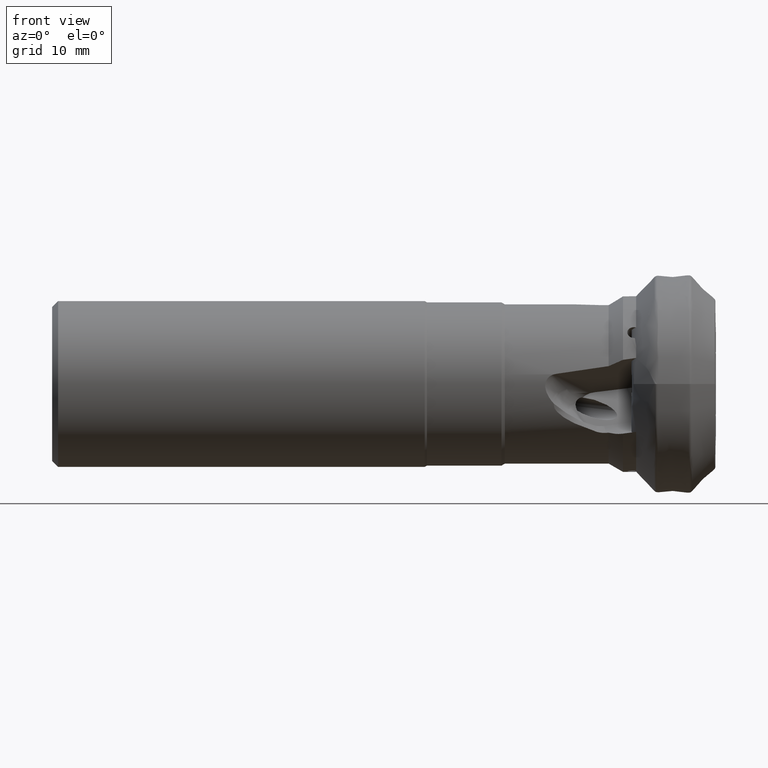
[diagram: clean part render]
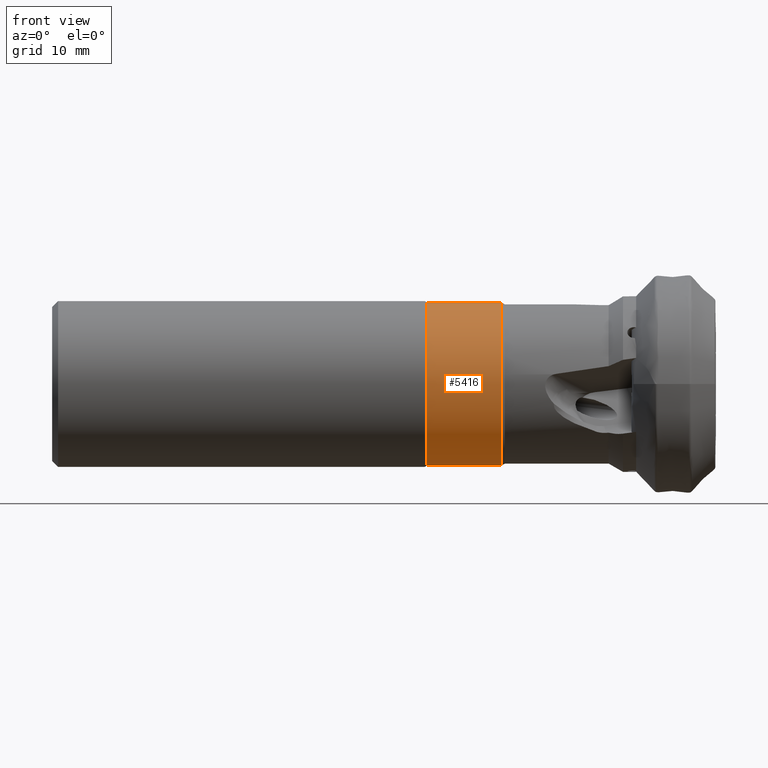
[diagram: same view with one face highlighted and labeled with its STEP entity id]
A machine part, front view. The second image highlights one B-rep face of the part: STEP entity #5416.
In plain terms, the highlighted cylindrical surface (partial cylindrical patch) has radius 12.3 mm, axis along (1, -0, -0).
Its self-contained STEP definition (entity closure, byte-faithful):
#215 = CIRCLE ( 'NONE', #1658, 12.29999999999999500 ) ;
#854 = LINE ( 'NONE', #2926, #5311 ) ;
#1122 = CYLINDRICAL_SURFACE ( 'NONE', #5107, 12.29999999999999500 ) ;
#1170 = CARTESIAN_POINT ( 'NONE',  ( -31.39999999999999900, 0.0000000000000000000, 12.29999999999999700 ) ) ;
#1364 = DIRECTION ( 'NONE',  ( 1.000000000000000000, -0.0000000000000000000, -0.0000000000000000000 ) ) ;
#1404 = CARTESIAN_POINT ( 'NONE',  ( -31.39999999999999900, 0.0000000000000000000, 0.0000000000000000000 ) ) ;
#1658 = AXIS2_PLACEMENT_3D ( 'NONE', #3865, #1364, #4283 ) ;
#1678 = DIRECTION ( 'NONE',  ( 1.000000000000000000, -0.0000000000000000000, -0.0000000000000000000 ) ) ;
#1763 = VERTEX_POINT ( 'NONE', #5000 ) ;
#1768 = VERTEX_POINT ( 'NONE', #3746 ) ;
#1822 = DIRECTION ( 'NONE',  ( 0.0000000000000000000, 0.0000000000000000000, -1.000000000000000000 ) ) ;
#1983 = EDGE_CURVE ( 'NONE', #2394, #3942, #3910, .T. ) ;
#1986 = EDGE_LOOP ( 'NONE', ( #2045, #5402, #4862, #1992 ) ) ;
#1992 = ORIENTED_EDGE ( 'NONE', *, *, #1983, .F. ) ;
#2045 = ORIENTED_EDGE ( 'NONE', *, *, #5096, .F. ) ;
#2190 = EDGE_CURVE ( 'NONE', #1768, #1763, #215, .T. ) ;
#2375 = FACE_OUTER_BOUND ( 'NONE', #1986, .T. ) ;
#2394 = VERTEX_POINT ( 'NONE', #1170 ) ;
#2680 = CARTESIAN_POINT ( 'NONE',  ( 0.0000000000000000000, 1.506315562951243800E-015, 12.29999999999999500 ) ) ;
#2926 = CARTESIAN_POINT ( 'NONE',  ( 0.0000000000000000000, 0.0000000000000000000, -12.29999999999999500 ) ) ;
#2972 = DIRECTION ( 'NONE',  ( 1.000000000000000000, -0.0000000000000000000, -0.0000000000000000000 ) ) ;
#3105 = DIRECTION ( 'NONE',  ( 1.000000000000000000, -0.0000000000000000000, -0.0000000000000000000 ) ) ;
#3144 = EDGE_CURVE ( 'NONE', #1763, #3942, #854, .T. ) ;
#3186 = AXIS2_PLACEMENT_3D ( 'NONE', #1404, #4325, #1822 ) ;
#3300 = DIRECTION ( 'NONE',  ( 0.0000000000000000000, 0.0000000000000000000, -1.000000000000000000 ) ) ;
#3308 = CARTESIAN_POINT ( 'NONE',  ( -31.39999999999999900, 1.506315562951244000E-015, -12.29999999999999700 ) ) ;
#3746 = CARTESIAN_POINT ( 'NONE',  ( -42.63038475772933800, 0.0000000000000000000, 12.29999999999999500 ) ) ;
#3849 = VECTOR ( 'NONE', #3105, 1000.000000000000000 ) ;
#3865 = CARTESIAN_POINT ( 'NONE',  ( -42.63038475772933800, 0.0000000000000000000, 0.0000000000000000000 ) ) ;
#3910 = CIRCLE ( 'NONE', #3186, 12.29999999999999700 ) ;
#3942 = VERTEX_POINT ( 'NONE', #3308 ) ;
#4283 = DIRECTION ( 'NONE',  ( 0.0000000000000000000, 0.0000000000000000000, -1.000000000000000000 ) ) ;
#4325 = DIRECTION ( 'NONE',  ( 1.000000000000000000, -0.0000000000000000000, -0.0000000000000000000 ) ) ;
#4862 = ORIENTED_EDGE ( 'NONE', *, *, #3144, .T. ) ;
#4987 = LINE ( 'NONE', #2680, #3849 ) ;
#5000 = CARTESIAN_POINT ( 'NONE',  ( -42.63038475772933800, 1.518562030942718000E-015, -12.29999999999999500 ) ) ;
#5028 = CARTESIAN_POINT ( 'NONE',  ( 0.0000000000000000000, 0.0000000000000000000, 0.0000000000000000000 ) ) ;
#5096 = EDGE_CURVE ( 'NONE', #1768, #2394, #4987, .T. ) ;
#5107 = AXIS2_PLACEMENT_3D ( 'NONE', #5028, #1678, #3300 ) ;
#5311 = VECTOR ( 'NONE', #2972, 1000.000000000000000 ) ;
#5402 = ORIENTED_EDGE ( 'NONE', *, *, #2190, .T. ) ;
#5416 = ADVANCED_FACE ( 'NONE', ( #2375 ), #1122, .T. ) ;